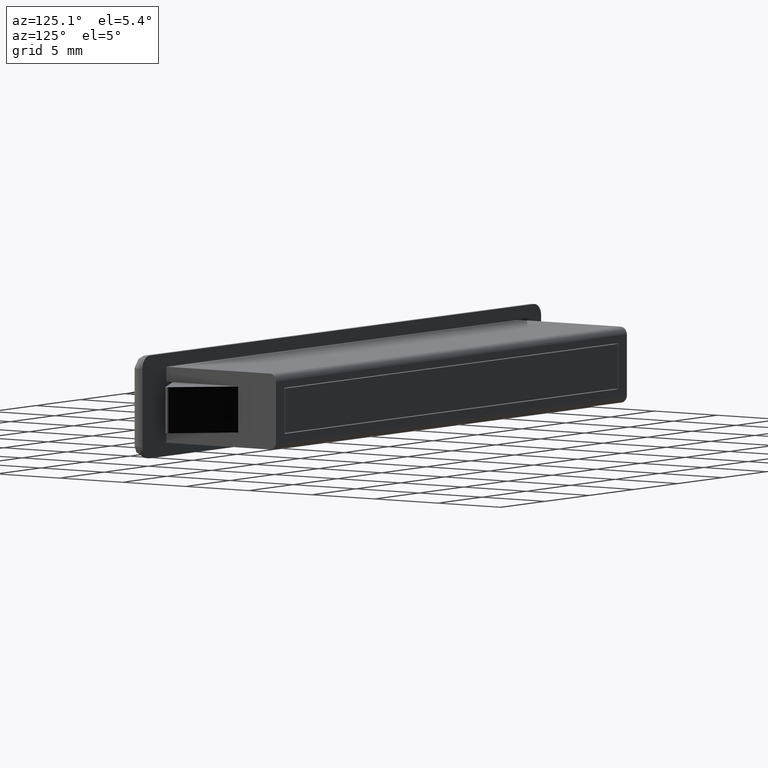
[diagram: clean part render]
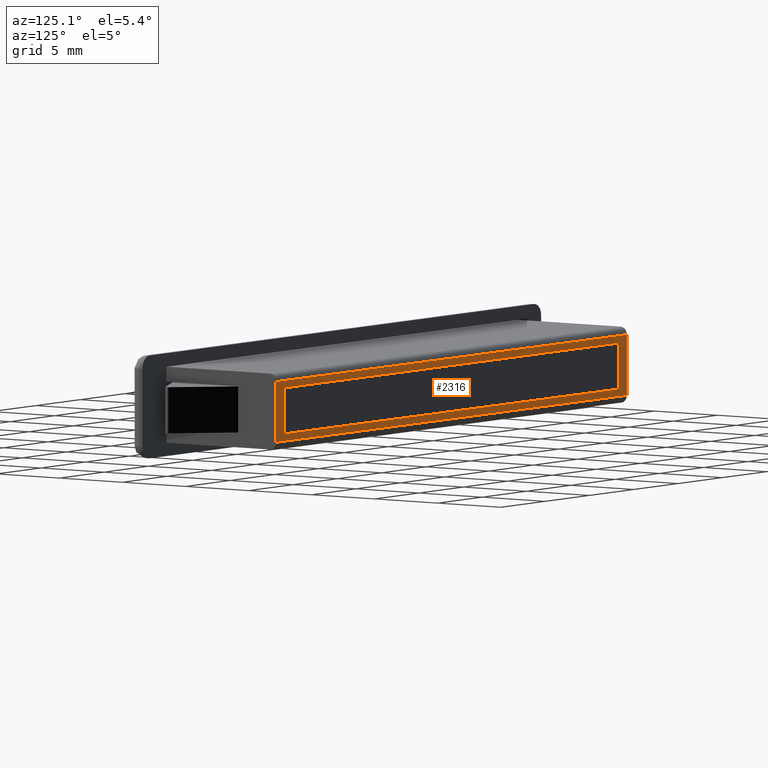
[diagram: same view with one face highlighted and labeled with its STEP entity id]
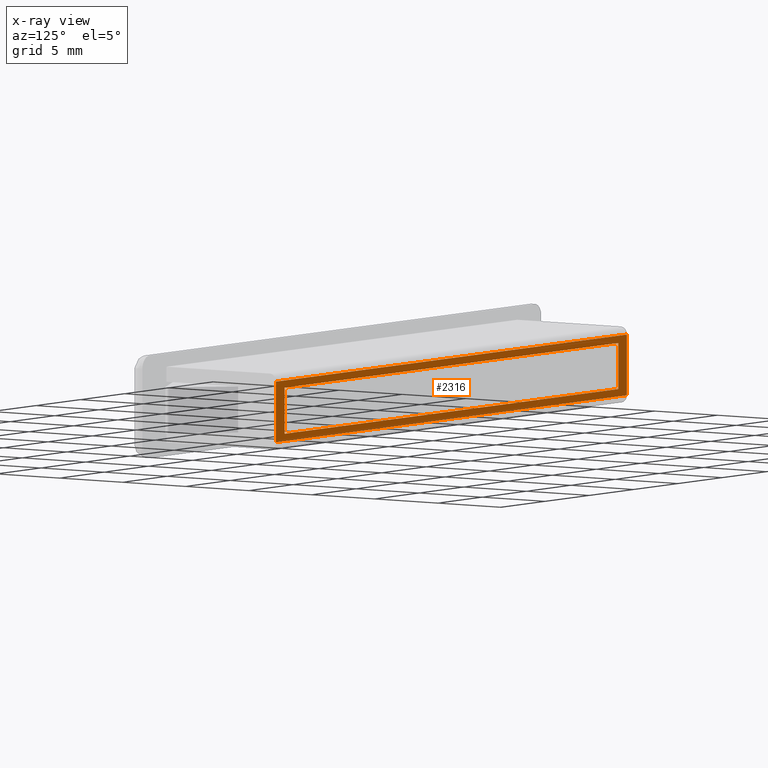
[diagram: x-ray of the same camera — body ghosted, the highlighted face saturated]
A machine part, auxiliary view. The second image highlights one B-rep face of the part: STEP entity #2316.
The next image is the same camera in x-ray: the body ghosted, the highlighted face saturated — about 0% of this face is hidden behind the body in this view.
In plain terms, the highlighted face is a freeform B-spline surface patch.
Its self-contained STEP definition (entity closure, byte-faithful):
#1663=CARTESIAN_POINT('',(18.824999999999999,0.0,-1.500000000000000));
#1664=VERTEX_POINT('',#1663);
#1665=CARTESIAN_POINT('',(18.824999999999999,0.0,1.500000000000000));
#1666=VERTEX_POINT('',#1665);
#1667=CARTESIAN_POINT('',(18.824999999999999,0.0,-1.500000000000000));
#1668=CARTESIAN_POINT('',(18.824999999999999,0.0,1.500000000000000));
#1669=QUASI_UNIFORM_CURVE('',1,(#1667,#1668),.UNSPECIFIED.,.F.,.U.);
#1670=EDGE_CURVE('',#1664,#1666,#1669,.T.);
#1691=CARTESIAN_POINT('',(-18.824999999999999,0.0,-1.500000000000000));
#1692=VERTEX_POINT('',#1691);
#1693=CARTESIAN_POINT('',(-18.824999999999999,0.0,-1.500000000000000));
#1694=CARTESIAN_POINT('',(18.824999999999999,0.0,-1.500000000000000));
#1695=QUASI_UNIFORM_CURVE('',1,(#1693,#1694),.UNSPECIFIED.,.F.,.U.);
#1696=EDGE_CURVE('',#1692,#1664,#1695,.T.);
#1713=CARTESIAN_POINT('',(-18.824999999999999,0.0,1.500000000000000));
#1714=VERTEX_POINT('',#1713);
#1715=CARTESIAN_POINT('',(-18.824999999999999,0.0,1.500000000000000));
#1716=CARTESIAN_POINT('',(-18.824999999999999,0.0,-1.500000000000000));
#1717=QUASI_UNIFORM_CURVE('',1,(#1715,#1716),.UNSPECIFIED.,.F.,.U.);
#1718=EDGE_CURVE('',#1714,#1692,#1717,.T.);
#1735=CARTESIAN_POINT('',(18.824999999999999,0.0,1.500000000000000));
#1736=CARTESIAN_POINT('',(-18.824999999999999,0.0,1.500000000000000));
#1737=QUASI_UNIFORM_CURVE('',1,(#1735,#1736),.UNSPECIFIED.,.F.,.U.);
#1738=EDGE_CURVE('',#1666,#1714,#1737,.T.);
#1760=CARTESIAN_POINT('',(-19.800000000000001,0.0,-1.975000000000000));
#1761=VERTEX_POINT('',#1760);
#1775=CARTESIAN_POINT('',(19.800000000000001,0.0,-1.975000000000000));
#1776=VERTEX_POINT('',#1775);
#1777=CARTESIAN_POINT('',(19.800000000000001,0.0,-1.975000000000000));
#1778=CARTESIAN_POINT('',(-19.800000000000001,0.0,-1.975000000000000));
#1779=QUASI_UNIFORM_CURVE('',1,(#1777,#1778),.UNSPECIFIED.,.F.,.U.);
#1780=EDGE_CURVE('',#1776,#1761,#1779,.T.);
#1813=CARTESIAN_POINT('',(-19.800000000000001,0.0,1.975000000000000));
#1814=VERTEX_POINT('',#1813);
#1829=CARTESIAN_POINT('',(19.800000000000001,0.0,1.975000000000000));
#1830=VERTEX_POINT('',#1829);
#1844=CARTESIAN_POINT('',(-19.800000000000001,0.0,1.975000000000000));
#1845=CARTESIAN_POINT('',(19.800000000000001,0.0,1.975000000000000));
#1846=QUASI_UNIFORM_CURVE('',1,(#1844,#1845),.UNSPECIFIED.,.F.,.U.);
#1847=EDGE_CURVE('',#1814,#1830,#1846,.T.);
#2256=CARTESIAN_POINT('',(19.800000000000001,0.0,-1.975000000000000));
#2257=CARTESIAN_POINT('',(19.800000000000001,0.0,1.975000000000000));
#2258=QUASI_UNIFORM_CURVE('',1,(#2256,#2257),.UNSPECIFIED.,.F.,.U.);
#2259=EDGE_CURVE('',#1776,#1830,#2258,.T.);
#2282=CARTESIAN_POINT('',(-19.800000000000001,0.0,-1.975000000000000));
#2283=CARTESIAN_POINT('',(-19.800000000000001,0.0,1.975000000000000));
#2284=QUASI_UNIFORM_CURVE('',1,(#2282,#2283),.UNSPECIFIED.,.F.,.U.);
#2285=EDGE_CURVE('',#1761,#1814,#2284,.T.);
#2299=CARTESIAN_POINT('',(-21.778019923247520,0.0,-2.172302492344134));
#2300=CARTESIAN_POINT('',(-21.778019923247520,0.0,2.172302598291390));
#2301=CARTESIAN_POINT('',(21.778020985402289,0.0,-2.172302492344134));
#2302=CARTESIAN_POINT('',(21.778020985402289,0.0,2.172302598291390));
#2303=B_SPLINE_SURFACE_WITH_KNOTS('',1,1,((#2299,#2301),(#2300,#2302)),.UNSPECIFIED.,.F.,.F.,.U.,(2,2),(2,2),(0.0,4.344605090635524),(0.0,43.556040908649813),.UNSPECIFIED.);
#2304=ORIENTED_EDGE('',*,*,#2285,.T.);
#2305=ORIENTED_EDGE('',*,*,#1847,.T.);
#2306=ORIENTED_EDGE('',*,*,#2259,.F.);
#2307=ORIENTED_EDGE('',*,*,#1780,.T.);
#2308=EDGE_LOOP('',(#2304,#2305,#2306,#2307));
#2309=FACE_OUTER_BOUND('',#2308,.T.);
#2310=ORIENTED_EDGE('',*,*,#1670,.T.);
#2311=ORIENTED_EDGE('',*,*,#1738,.T.);
#2312=ORIENTED_EDGE('',*,*,#1718,.T.);
#2313=ORIENTED_EDGE('',*,*,#1696,.T.);
#2314=EDGE_LOOP('',(#2310,#2311,#2312,#2313));
#2315=FACE_BOUND('',#2314,.T.);
#2316=ADVANCED_FACE('',(#2309,#2315),#2303,.T.);